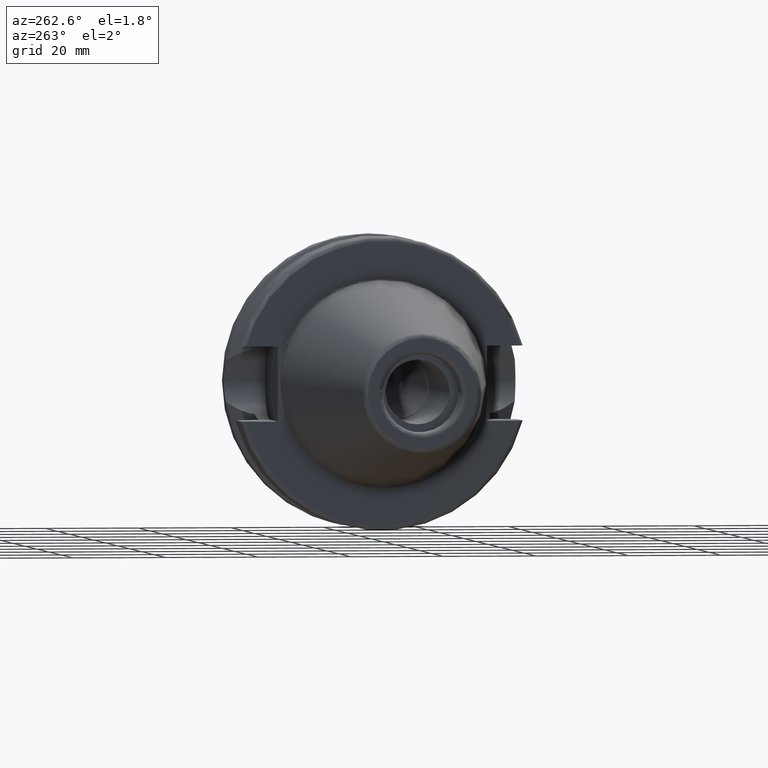
[diagram: clean part render]
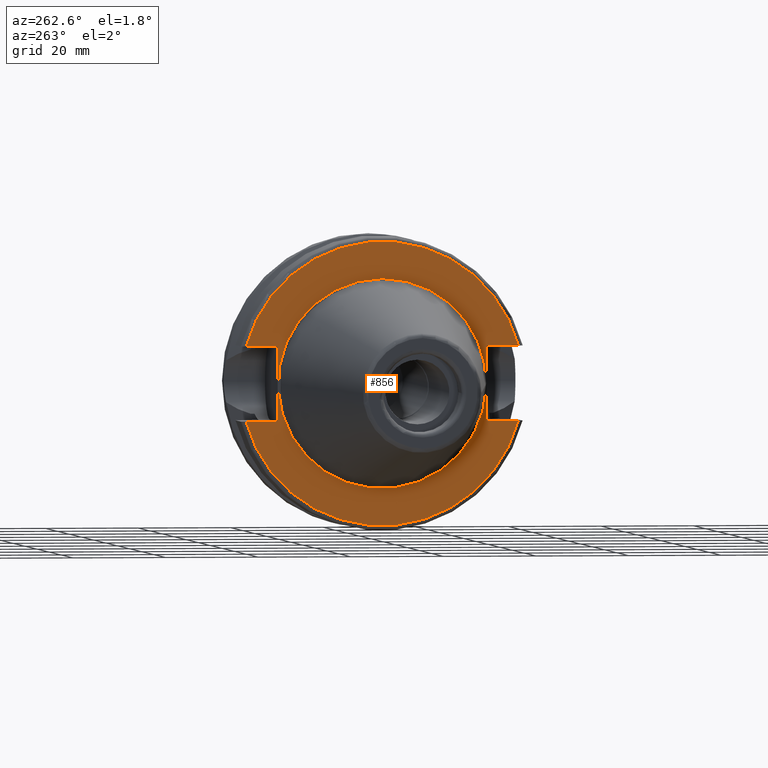
[diagram: same view with one face highlighted and labeled with its STEP entity id]
A machine part, auxiliary view. The second image highlights one B-rep face of the part: STEP entity #856.
In plain terms, the highlighted planar face has unit normal (-1, 0, 0).
Its self-contained STEP definition (entity closure, byte-faithful):
#29=PLANE('',#971);
#57=FACE_BOUND('',#225,.T.);
#89=CIRCLE('',#948,30.5);
#101=CIRCLE('',#970,22.5);
#102=CIRCLE('',#972,30.5);
#169=FACE_OUTER_BOUND('',#224,.T.);
#224=EDGE_LOOP('',(#756,#757,#758,#759,#760,#761,#762,#763));
#225=EDGE_LOOP('',(#764));
#278=LINE('',#1613,#326);
#282=LINE('',#1621,#330);
#285=LINE('',#1641,#333);
#296=LINE('',#1741,#344);
#299=LINE('',#1762,#347);
#301=LINE('',#1765,#349);
#326=VECTOR('',#1089,10.);
#330=VECTOR('',#1095,10.);
#333=VECTOR('',#1100,10.);
#344=VECTOR('',#1155,10.);
#347=VECTOR('',#1160,10.);
#349=VECTOR('',#1164,10.);
#391=VERTEX_POINT('',#1601);
#392=VERTEX_POINT('',#1612);
#394=VERTEX_POINT('',#1618);
#395=VERTEX_POINT('',#1620);
#410=VERTEX_POINT('',#1701);
#417=VERTEX_POINT('',#1738);
#418=VERTEX_POINT('',#1740);
#422=VERTEX_POINT('',#1761);
#430=VERTEX_POINT('',#1791);
#486=EDGE_CURVE('',#392,#391,#278,.T.);
#490=EDGE_CURVE('',#395,#394,#282,.T.);
#495=EDGE_CURVE('',#394,#392,#285,.T.);
#515=EDGE_CURVE('',#395,#410,#89,.T.);
#525=EDGE_CURVE('',#418,#417,#296,.T.);
#530=EDGE_CURVE('',#422,#410,#299,.T.);
#532=EDGE_CURVE('',#417,#422,#301,.T.);
#546=EDGE_CURVE('',#430,#430,#101,.T.);
#547=EDGE_CURVE('',#418,#391,#102,.T.);
#756=ORIENTED_EDGE('',*,*,#486,.T.);
#757=ORIENTED_EDGE('',*,*,#547,.F.);
#758=ORIENTED_EDGE('',*,*,#525,.T.);
#759=ORIENTED_EDGE('',*,*,#532,.T.);
#760=ORIENTED_EDGE('',*,*,#530,.T.);
#761=ORIENTED_EDGE('',*,*,#515,.F.);
#762=ORIENTED_EDGE('',*,*,#490,.T.);
#763=ORIENTED_EDGE('',*,*,#495,.T.);
#764=ORIENTED_EDGE('',*,*,#546,.T.);
#856=ADVANCED_FACE('',(#169,#57),#29,.T.);
#948=AXIS2_PLACEMENT_3D('',#1702,#1142,#1143);
#970=AXIS2_PLACEMENT_3D('',#1793,#1200,#1201);
#971=AXIS2_PLACEMENT_3D('',#1794,#1202,#1203);
#972=AXIS2_PLACEMENT_3D('',#1795,#1204,#1205);
#1089=DIRECTION('',(0.,-1.,0.));
#1095=DIRECTION('',(0.,1.,0.));
#1100=DIRECTION('',(0.,0.,1.));
#1142=DIRECTION('center_axis',(1.,0.,0.));
#1143=DIRECTION('ref_axis',(0.,0.,-1.));
#1155=DIRECTION('',(0.,-1.,0.));
#1160=DIRECTION('',(0.,1.,0.));
#1164=DIRECTION('',(0.,0.,-1.));
#1200=DIRECTION('center_axis',(1.,0.,0.));
#1201=DIRECTION('ref_axis',(0.,0.,-1.));
#1202=DIRECTION('center_axis',(-1.,0.,0.));
#1203=DIRECTION('ref_axis',(0.,0.,1.));
#1204=DIRECTION('center_axis',(1.,0.,0.));
#1205=DIRECTION('ref_axis',(0.,0.,-1.));
#1601=CARTESIAN_POINT('',(1.99999999999999,-29.4184890842477,8.05));
#1612=CARTESIAN_POINT('',(1.99999999999999,-22.6,8.05));
#1613=CARTESIAN_POINT('',(1.99999999999999,3.95,8.05));
#1618=CARTESIAN_POINT('',(1.99999999999999,-22.6,-8.05));
#1620=CARTESIAN_POINT('',(1.99999999999999,-29.4184890842477,-8.05));
#1621=CARTESIAN_POINT('',(1.99999999999999,3.95,-8.05));
#1641=CARTESIAN_POINT('',(1.99999999999999,-22.6,0.));
#1701=CARTESIAN_POINT('',(1.99999999999999,29.4184890842477,-8.05));
#1702=CARTESIAN_POINT('Origin',(1.99999999999999,0.,0.));
#1738=CARTESIAN_POINT('',(1.99999999999999,22.6,8.05));
#1740=CARTESIAN_POINT('',(1.99999999999999,29.4184890842477,8.05));
#1741=CARTESIAN_POINT('',(1.99999999999999,26.55,8.05));
#1761=CARTESIAN_POINT('',(1.99999999999999,22.6,-8.05));
#1762=CARTESIAN_POINT('',(1.99999999999999,26.55,-8.05));
#1765=CARTESIAN_POINT('',(1.99999999999999,22.6,0.));
#1791=CARTESIAN_POINT('',(2.,-2.75545529808154E-15,22.5));
#1793=CARTESIAN_POINT('Origin',(2.,0.,0.));
#1794=CARTESIAN_POINT('Origin',(1.99999999999999,30.5,0.));
#1795=CARTESIAN_POINT('Origin',(1.99999999999999,0.,0.));